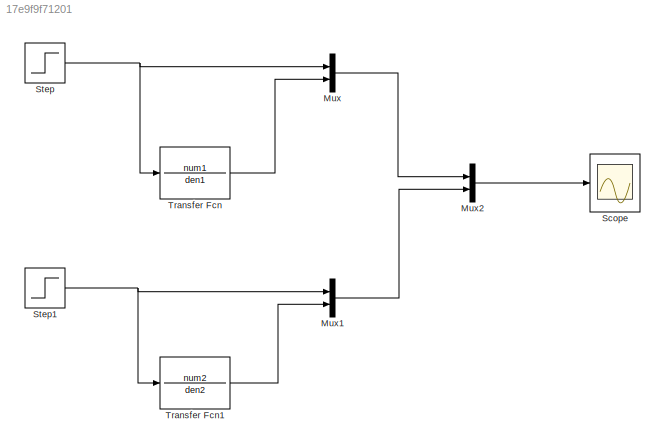
MODEL slx_17e9f9f71201
KIND model
BLOCK [Mux] Mux
  DisplayOption = bar
  Inputs = 2
  Ports = [2, 1]
BLOCK [Mux] Mux1
  DisplayOption = bar
  Inputs = 2
  Ports = [2, 1]
BLOCK [Mux] Mux2
  DisplayOption = bar
  Inputs = 2
  Ports = [2, 1]
BLOCK [Scope] Scope
  DataFormat = StructureWithTime
  Floating = off
  NumInputPorts = 1
  Ports = [1]
  SampleTime = 0
  ShowLegends = off
BLOCK [Step] Step
  SampleTime = 0.01
BLOCK [Step] Step1
  SampleTime = 0.01
BLOCK [TransferFcn] Transfer Fcn
  Denominator = den1
  Numerator = num1
BLOCK [TransferFcn] Transfer Fcn1
  Denominator = den2
  Numerator = num2
LINE Mux1:1 -> Mux2:2
LINE Mux2:1 -> Scope:1
LINE Mux:1 -> Mux2:1
NET Step1:1 -> Mux1:1, Transfer Fcn1:1
NET Step:1 -> Mux:1, Transfer Fcn:1
LINE Transfer Fcn1:1 -> Mux1:2
LINE Transfer Fcn:1 -> Mux:2
note: NET lines group one-source signal fan-out (src -> all destinations, sorted); 1:1 wires keep LINE
